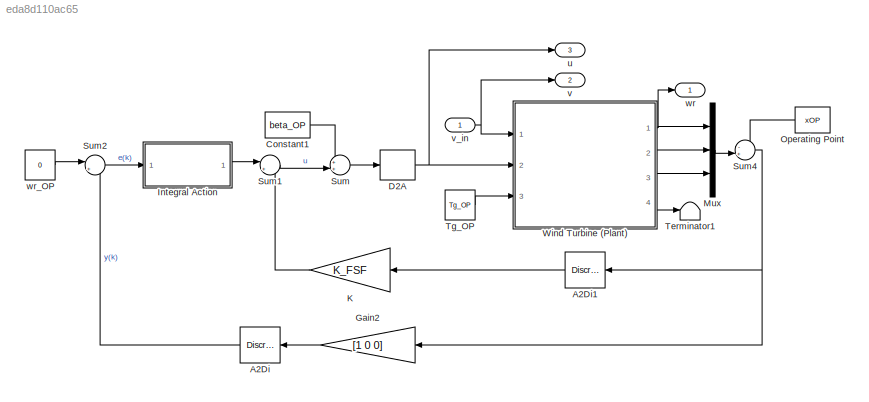
MODEL slx_eda8d110ac65
KIND model
CONFIG AbsTol = auto
CONFIG EnableMultiTasking = off
CONFIG FixedStep = STEP_SIZE
CONFIG MaxStep = auto
CONFIG MinStep = auto
CONFIG RelTol = 1e-3
CONFIG SampleTimeConstraint = Unconstrained
CONFIG Solver = ode4
CONFIG SolverName = ode4
CONFIG StartTime = 0.0
CONFIG StopTime = TIME_SIM
BLOCK [DiscreteTransferFcn] A2Di
  Denominator = [1]
  InputPortMap = u0
  Ports = [1, 1]
  SampleTime = Ts
BLOCK [DiscreteTransferFcn] A2Di1
  Denominator = [1]
  InputPortMap = u0
  Ports = [1, 1]
  SampleTime = Ts
BLOCK [Constant] Constant1
  SampleTime = Ts
  Value = beta_OP
BLOCK [ZeroOrderHold] D2A
  SampleTime = -1
BLOCK [Gain] Gain2
  Gain = [1 0 0]
  Multiplication = Matrix(K*u) (u vector)
  OutDataTypeStr = Inherit: Inherit via internal rule
  ParamDataTypeStr = Inherit: Inherit via internal rule
  SaturateOnIntegerOverflow = off
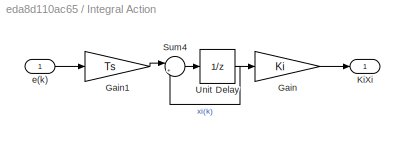
BLOCK [SubSystem] Integral Action
  Ports = [1, 1]
  RequestExecContextInheritance = off
BLOCK [Gain] Integral Action/Gain
  Gain = Ki
  Multiplication = Matrix(K*u) (u vector)
  OutDataTypeStr = Inherit: Inherit via internal rule
  ParamDataTypeStr = Inherit: Inherit via internal rule
  SaturateOnIntegerOverflow = off
BLOCK [Gain] Integral Action/Gain1
  Gain = Ts
  Multiplication = Matrix(K*u) (u vector)
  OutDataTypeStr = Inherit: Inherit via internal rule
  ParamDataTypeStr = Inherit: Inherit via internal rule
  SaturateOnIntegerOverflow = off
BLOCK [Outport] Integral Action/KiXi
  IconDisplay = Port number
BLOCK [Sum] Integral Action/Sum4
  IconShape = round
  InputSameDT = off
  Inputs = |++
  OutDataTypeStr = Inherit: Inherit via internal rule
  Ports = [2, 1]
  SaturateOnIntegerOverflow = off
BLOCK [UnitDelay] Integral Action/Unit Delay
  InputProcessing = Elements as channels (sample based)
  SampleTime = Ts
BLOCK [Inport] Integral Action/e(k)
  IconDisplay = Port number
BLOCK [Gain] K
  Gain = K_FSF
  Multiplication = Matrix(K*u) (u vector)
  OutDataTypeStr = Inherit: Inherit via internal rule
  ParamDataTypeStr = Inherit: Inherit via internal rule
  SaturateOnIntegerOverflow = off
BLOCK [Mux] Mux
  DisplayOption = bar
  Inputs = 3
  Ports = [3, 1]
BLOCK [Constant] Operating Point
  Value = xOP
BLOCK [Sum] Sum
  IconShape = round
  InputSameDT = off
  Inputs = ++|
  OutDataTypeStr = Inherit: Inherit via internal rule
  Ports = [2, 1]
  SaturateOnIntegerOverflow = off
BLOCK [Sum] Sum1
  IconShape = round
  InputSameDT = off
  Inputs = |+-
  OutDataTypeStr = Inherit: Inherit via internal rule
  Ports = [2, 1]
  SaturateOnIntegerOverflow = off
BLOCK [Sum] Sum2
  IconShape = round
  InputSameDT = off
  Inputs = |+-
  OutDataTypeStr = Inherit: Inherit via internal rule
  Ports = [2, 1]
  SaturateOnIntegerOverflow = off
BLOCK [Sum] Sum4
  IconShape = round
  InputSameDT = off
  Inputs = -+|
  OutDataTypeStr = Inherit: Inherit via internal rule
  Ports = [2, 1]
  SaturateOnIntegerOverflow = off
BLOCK [Terminator] Terminator1
BLOCK [Constant] Tg_OP
  Value = Tg_OP
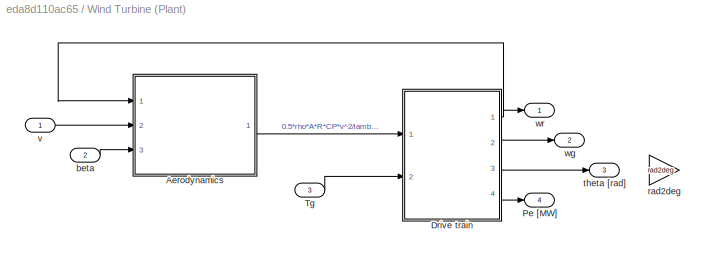
BLOCK [SubSystem] Wind Turbine (Plant)
  Ports = [3, 4]
  RequestExecContextInheritance = off
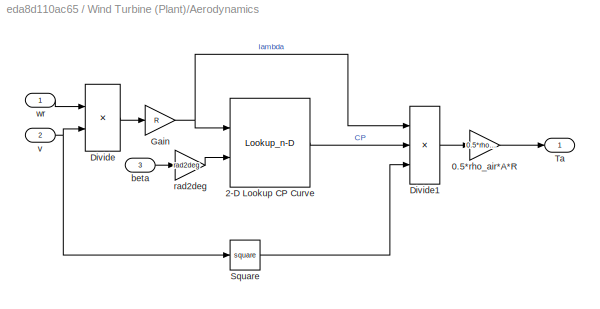
BLOCK [SubSystem] Wind Turbine (Plant)/Aerodynamics
  Ports = [3, 1]
  RequestExecContextInheritance = off
BLOCK [Gain] Wind Turbine (Plant)/Aerodynamics/0.5*rho_air*A*R
  Gain = 0.5*rho_air*Area*R
  OutDataTypeStr = Inherit: Inherit via internal rule
  ParamDataTypeStr = Inherit: Inherit via internal rule
  SaturateOnIntegerOverflow = off
BLOCK [Lookup_n-D] Wind Turbine (Plant)/Aerodynamics/2-D Lookup CP Curve
  BreakpointsForDimension1 = Lambda_legend
  BreakpointsForDimension2 = Pitch_legend
  InternalRulePriority = Speed
  Ports = [2, 1]
  RndMeth = Simplest
  Table = CP
BLOCK [Product] Wind Turbine (Plant)/Aerodynamics/Divide
  InputSameDT = off
  Inputs = */
  OutDataTypeStr = Inherit: Inherit via internal rule
  Ports = [2, 1]
  RndMeth = Floor
  SaturateOnIntegerOverflow = off
BLOCK [Product] Wind Turbine (Plant)/Aerodynamics/Divide1
  InputSameDT = off
  Inputs = /**
  OutDataTypeStr = Inherit: Inherit via internal rule
  Ports = [3, 1]
  RndMeth = Floor
  SaturateOnIntegerOverflow = off
BLOCK [Gain] Wind Turbine (Plant)/Aerodynamics/Gain
  Gain = R
  OutDataTypeStr = Inherit: Inherit via internal rule
  ParamDataTypeStr = Inherit: Inherit via internal rule
  SaturateOnIntegerOverflow = off
BLOCK [Math] Wind Turbine (Plant)/Aerodynamics/Square
  Operator = square
  Ports = [1, 1]
BLOCK [Outport] Wind Turbine (Plant)/Aerodynamics/Ta
  IconDisplay = Port number
BLOCK [Inport] Wind Turbine (Plant)/Aerodynamics/beta
  IconDisplay = Port number
  Port = 3
BLOCK [Gain] Wind Turbine (Plant)/Aerodynamics/rad2deg
  Gain = rad2deg
  OutDataTypeStr = Inherit: Inherit via internal rule
  ParamDataTypeStr = Inherit: Inherit via internal rule
  SaturateOnIntegerOverflow = off
BLOCK [Inport] Wind Turbine (Plant)/Aerodynamics/v
  IconDisplay = Port number
  Port = 2
BLOCK [Inport] Wind Turbine (Plant)/Aerodynamics/wr
  IconDisplay = Port number
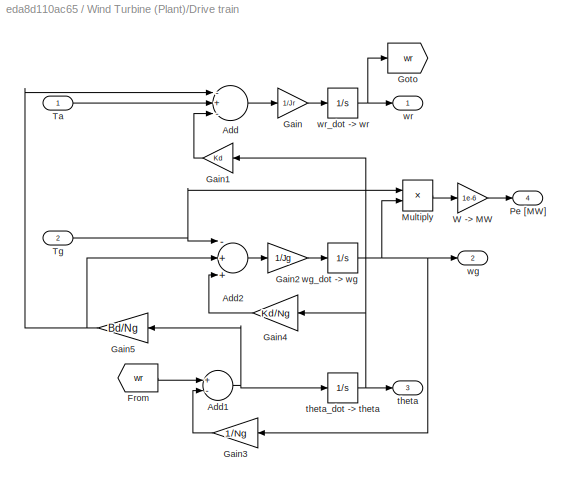
BLOCK [SubSystem] Wind Turbine (Plant)/Drive train
  Ports = [2, 4]
  RequestExecContextInheritance = off
BLOCK [Sum] Wind Turbine (Plant)/Drive train/Add
  InputSameDT = off
  Inputs = -+-
  OutDataTypeStr = Inherit: Inherit via internal rule
  Ports = [3, 1]
  SaturateOnIntegerOverflow = off
BLOCK [Sum] Wind Turbine (Plant)/Drive train/Add1
  InputSameDT = off
  Inputs = +-
  OutDataTypeStr = Inherit: Inherit via internal rule
  Ports = [2, 1]
  SaturateOnIntegerOverflow = off
BLOCK [Sum] Wind Turbine (Plant)/Drive train/Add2
  InputSameDT = off
  Inputs = -++
  OutDataTypeStr = Inherit: Inherit via internal rule
  Ports = [3, 1]
  SaturateOnIntegerOverflow = off
BLOCK [From] Wind Turbine (Plant)/Drive train/From
  GotoTag = wr
BLOCK [Gain] Wind Turbine (Plant)/Drive train/Gain
  Gain = 1/Jr
  OutDataTypeStr = Inherit: Inherit via internal rule
  ParamDataTypeStr = Inherit: Inherit via internal rule
  SaturateOnIntegerOverflow = off
BLOCK [Gain] Wind Turbine (Plant)/Drive train/Gain1
  Gain = Kd
  OutDataTypeStr = Inherit: Inherit via internal rule
  ParamDataTypeStr = Inherit: Inherit via internal rule
  SaturateOnIntegerOverflow = off
BLOCK [Gain] Wind Turbine (Plant)/Drive train/Gain2
  Gain = 1/Jg
  OutDataTypeStr = Inherit: Inherit via internal rule
  ParamDataTypeStr = Inherit: Inherit via internal rule
  SaturateOnIntegerOverflow = off
BLOCK [Gain] Wind Turbine (Plant)/Drive train/Gain3
  Gain = 1/Ng
  OutDataTypeStr = Inherit: Inherit via internal rule
  ParamDataTypeStr = Inherit: Inherit via internal rule
  SaturateOnIntegerOverflow = off
BLOCK [Gain] Wind Turbine (Plant)/Drive train/Gain4
  Gain = Kd/Ng
  OutDataTypeStr = Inherit: Inherit via internal rule
  ParamDataTypeStr = Inherit: Inherit via internal rule
  SaturateOnIntegerOverflow = off
BLOCK [Gain] Wind Turbine (Plant)/Drive train/Gain5
  Gain = Bd/Ng
  OutDataTypeStr = Inherit: Inherit via internal rule
  ParamDataTypeStr = Inherit: Inherit via internal rule
  SaturateOnIntegerOverflow = off
BLOCK [Goto] Wind Turbine (Plant)/Drive train/Goto
  GotoTag = wr
BLOCK [Product] Wind Turbine (Plant)/Drive train/Multiply
  InputSameDT = off
  OutDataTypeStr = Inherit: Inherit via internal rule
  Ports = [2, 1]
  RndMeth = Floor
  SaturateOnIntegerOverflow = off
BLOCK [Outport] Wind Turbine (Plant)/Drive train/Pe [MW]
  IconDisplay = Port number
  Port = 4
BLOCK [Inport] Wind Turbine (Plant)/Drive train/Ta
  IconDisplay = Port number
BLOCK [Inport] Wind Turbine (Plant)/Drive train/Tg
  IconDisplay = Port number
  Port = 2
BLOCK [Gain] Wind Turbine (Plant)/Drive train/W -> MW
  Gain = 1e-6
  OutDataTypeStr = Inherit: Inherit via internal rule
  ParamDataTypeStr = Inherit: Inherit via internal rule
  SaturateOnIntegerOverflow = off
BLOCK [Outport] Wind Turbine (Plant)/Drive train/theta
  IconDisplay = Port number
  Port = 3
BLOCK [Integrator] Wind Turbine (Plant)/Drive train/theta_dot -> theta
  InitialCondition = xOP(3)
  Ports = [1, 1]
  Priority = 3
BLOCK [Outport] Wind Turbine (Plant)/Drive train/wg
  IconDisplay = Port number
  Port = 2
BLOCK [Integrator] Wind Turbine (Plant)/Drive train/wg_dot -> wg
  InitialCondition = xOP(2)
  Ports = [1, 1]
  Priority = 2
BLOCK [Outport] Wind Turbine (Plant)/Drive train/wr
  IconDisplay = Port number
BLOCK [Integrator] Wind Turbine (Plant)/Drive train/wr_dot -> wr
  InitialCondition = xOP(1)
  Ports = [1, 1]
  Priority = 1
BLOCK [Outport] Wind Turbine (Plant)/Pe [MW]
  IconDisplay = Port number
  Port = 4
BLOCK [Inport] Wind Turbine (Plant)/Tg
  IconDisplay = Port number
  Port = 3
BLOCK [Inport] Wind Turbine (Plant)/beta
  IconDisplay = Port number
  Port = 2
BLOCK [Gain] Wind Turbine (Plant)/rad2deg
  Commented = on
  Gain = rad2deg
  OutDataTypeStr = Inherit: Inherit via internal rule
  ParamDataTypeStr = Inherit: Inherit via internal rule
  SaturateOnIntegerOverflow = off
BLOCK [Outport] Wind Turbine (Plant)/theta [rad]
  IconDisplay = Port number
  Port = 3
BLOCK [Inport] Wind Turbine (Plant)/v
  IconDisplay = Port number
BLOCK [Outport] Wind Turbine (Plant)/wg
  IconDisplay = Port number
  Port = 2
BLOCK [Outport] Wind Turbine (Plant)/wr
  IconDisplay = Port number
BLOCK [Outport] u
  IconDisplay = Port number
  Port = 3
BLOCK [Outport] v
  IconDisplay = Port number
  Port = 2
BLOCK [Inport] v_in
  IconDisplay = Port number
BLOCK [Outport] wr
  IconDisplay = Port number
BLOCK [Constant] wr_OP
  SampleTime = Ts
  Value = 0
LINE A2Di1:1 -> K:1
LINE A2Di:1 -> Sum2:2
LINE Constant1:1 -> Sum:1
NET D2A:1 -> Wind Turbine (Plant):2, u:1
LINE Gain2:1 -> A2Di:1
LINE Integral Action/Gain1:1 -> Integral Action/Sum4:1
LINE Integral Action/Gain:1 -> Integral Action/KiXi:1
LINE Integral Action/Sum4:1 -> Integral Action/Unit Delay:1
NET Integral Action/Unit Delay:1 -> Integral Action/Gain:1, Integral Action/Sum4:2
LINE Integral Action/e(k):1 -> Integral Action/Gain1:1
LINE Integral Action:1 -> Sum1:1
LINE K:1 -> Sum1:2
LINE Mux:1 -> Sum4:2
LINE Operating Point:1 -> Sum4:1
LINE Sum1:1 -> Sum:2
LINE Sum2:1 -> Integral Action:1
NET Sum4:1 -> A2Di1:1, Gain2:1
LINE Sum:1 -> D2A:1
LINE Tg_OP:1 -> Wind Turbine (Plant):3
LINE Wind Turbine (Plant)/Aerodynamics/0.5*rho_air*A*R:1 -> Wind Turbine (Plant)/Aerodynamics/Ta:1
LINE Wind Turbine (Plant)/Aerodynamics/2-D Lookup CP Curve:1 -> Wind Turbine (Plant)/Aerodynamics/Divide1:2
LINE Wind Turbine (Plant)/Aerodynamics/Divide1:1 -> Wind Turbine (Plant)/Aerodynamics/0.5*rho_air*A*R:1
LINE Wind Turbine (Plant)/Aerodynamics/Divide:1 -> Wind Turbine (Plant)/Aerodynamics/Gain:1
NET Wind Turbine (Plant)/Aerodynamics/Gain:1 -> Wind Turbine (Plant)/Aerodynamics/2-D Lookup CP Curve:1, Wind Turbine (Plant)/Aerodynamics/Divide1:1
LINE Wind Turbine (Plant)/Aerodynamics/Square:1 -> Wind Turbine (Plant)/Aerodynamics/Divide1:3
LINE Wind Turbine (Plant)/Aerodynamics/beta:1 -> Wind Turbine (Plant)/Aerodynamics/rad2deg:1
LINE Wind Turbine (Plant)/Aerodynamics/rad2deg:1 -> Wind Turbine (Plant)/Aerodynamics/2-D Lookup CP Curve:2
NET Wind Turbine (Plant)/Aerodynamics/v:1 -> Wind Turbine (Plant)/Aerodynamics/Divide:2, Wind Turbine (Plant)/Aerodynamics/Square:1
LINE Wind Turbine (Plant)/Aerodynamics/wr:1 -> Wind Turbine (Plant)/Aerodynamics/Divide:1
LINE Wind Turbine (Plant)/Aerodynamics:1 -> Wind Turbine (Plant)/Drive train:1
NET Wind Turbine (Plant)/Drive train/Add1:1 -> Wind Turbine (Plant)/Drive train/Gain5:1, Wind Turbine (Plant)/Drive train/theta_dot -> theta:1
LINE Wind Turbine (Plant)/Drive train/Add2:1 -> Wind Turbine (Plant)/Drive train/Gain2:1
LINE Wind Turbine (Plant)/Drive train/Add:1 -> Wind Turbine (Plant)/Drive train/Gain:1
LINE Wind Turbine (Plant)/Drive train/From:1 -> Wind Turbine (Plant)/Drive train/Add1:1
LINE Wind Turbine (Plant)/Drive train/Gain1:1 -> Wind Turbine (Plant)/Drive train/Add:3
LINE Wind Turbine (Plant)/Drive train/Gain2:1 -> Wind Turbine (Plant)/Drive train/wg_dot -> wg:1
LINE Wind Turbine (Plant)/Drive train/Gain3:1 -> Wind Turbine (Plant)/Drive train/Add1:2
LINE Wind Turbine (Plant)/Drive train/Gain4:1 -> Wind Turbine (Plant)/Drive train/Add2:3
NET Wind Turbine (Plant)/Drive train/Gain5:1 -> Wind Turbine (Plant)/Drive train/Add2:2, Wind Turbine (Plant)/Drive train/Add:1
LINE Wind Turbine (Plant)/Drive train/Gain:1 -> Wind Turbine (Plant)/Drive train/wr_dot -> wr:1
LINE Wind Turbine (Plant)/Drive train/Multiply:1 -> Wind Turbine (Plant)/Drive train/W -> MW:1
LINE Wind Turbine (Plant)/Drive train/Ta:1 -> Wind Turbine (Plant)/Drive train/Add:2
NET Wind Turbine (Plant)/Drive train/Tg:1 -> Wind Turbine (Plant)/Drive train/Add2:1, Wind Turbine (Plant)/Drive train/Multiply:1
LINE Wind Turbine (Plant)/Drive train/W -> MW:1 -> Wind Turbine (Plant)/Drive train/Pe [MW]:1
NET Wind Turbine (Plant)/Drive train/theta_dot -> theta:1 -> Wind Turbine (Plant)/Drive train/Gain1:1, Wind Turbine (Plant)/Drive train/Gain4:1, Wind Turbine (Plant)/Drive train/theta:1
NET Wind Turbine (Plant)/Drive train/wg_dot -> wg:1 -> Wind Turbine (Plant)/Drive train/Gain3:1, Wind Turbine (Plant)/Drive train/Multiply:2, Wind Turbine (Plant)/Drive train/wg:1
NET Wind Turbine (Plant)/Drive train/wr_dot -> wr:1 -> Wind Turbine (Plant)/Drive train/Goto:1, Wind Turbine (Plant)/Drive train/wr:1
NET Wind Turbine (Plant)/Drive train:1 -> Wind Turbine (Plant)/Aerodynamics:1, Wind Turbine (Plant)/wr:1
LINE Wind Turbine (Plant)/Drive train:2 -> Wind Turbine (Plant)/wg:1
LINE Wind Turbine (Plant)/Drive train:3 -> Wind Turbine (Plant)/theta [rad]:1
LINE Wind Turbine (Plant)/Drive train:4 -> Wind Turbine (Plant)/Pe [MW]:1
LINE Wind Turbine (Plant)/Tg:1 -> Wind Turbine (Plant)/Drive train:2
LINE Wind Turbine (Plant)/beta:1 -> Wind Turbine (Plant)/Aerodynamics:3
LINE Wind Turbine (Plant)/v:1 -> Wind Turbine (Plant)/Aerodynamics:2
NET Wind Turbine (Plant):1 -> Mux:1, wr:1
LINE Wind Turbine (Plant):2 -> Mux:2
LINE Wind Turbine (Plant):3 -> Mux:3
LINE Wind Turbine (Plant):4 -> Terminator1:1
NET v_in:1 -> Wind Turbine (Plant):1, v:1
LINE wr_OP:1 -> Sum2:1
note: NET lines group one-source signal fan-out (src -> all destinations, sorted); 1:1 wires keep LINE
